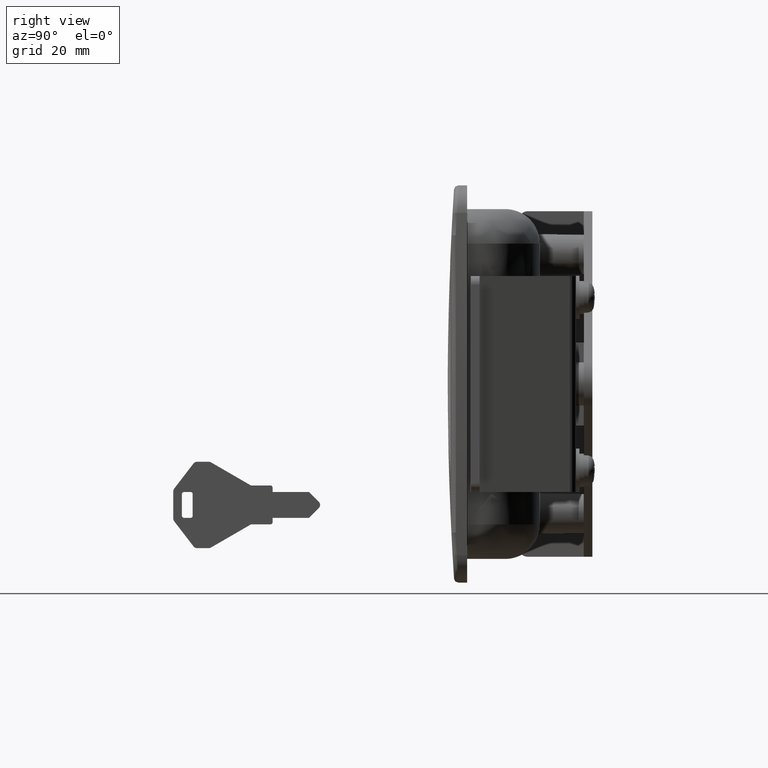
[diagram: clean part render]
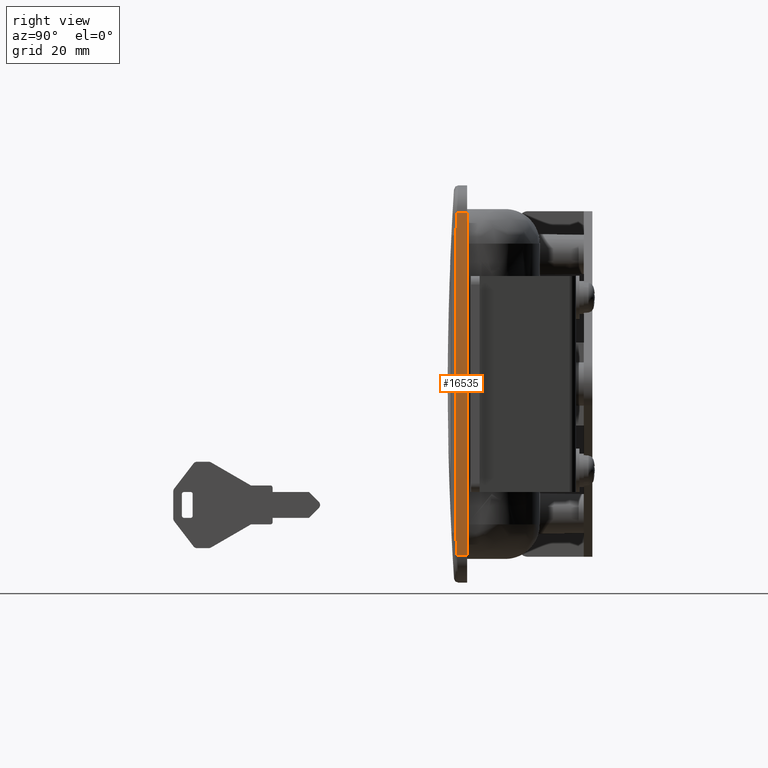
[diagram: same view with one face highlighted and labeled with its STEP entity id]
A machine part, right view. The second image highlights one B-rep face of the part: STEP entity #16535.
In plain terms, the highlighted face is a freeform B-spline surface patch.
Its self-contained STEP definition (entity closure, byte-faithful):
#10969=CARTESIAN_POINT('',(35.334934619039451,-31.656110694211549,34.404885821527003));
#10970=VERTEX_POINT('',#10969);
#10994=CARTESIAN_POINT('',(35.334789705496462,-31.656117807424099,-34.404745395338097));
#10995=VERTEX_POINT('',#10994);
#11006=CARTESIAN_POINT('',(35.334934619039451,-31.656110694211549,34.404885821527003));
#11007=CARTESIAN_POINT('',(35.723348313781273,-31.637045015991511,28.677342737851308));
#11008=CARTESIAN_POINT('',(36.305795738564953,-31.607848390089028,17.215682646568869));
#11009=CARTESIAN_POINT('',(36.500153078761663,-31.597943796458441,5.740894913507236));
#11010=CARTESIAN_POINT('',(36.500132185122112,-31.597944856866189,-5.740468320508859));
#11011=CARTESIAN_POINT('',(36.402929358096642,-31.602898380384591,-11.478031210324170));
#11012=CARTESIAN_POINT('',(36.014477020912572,-31.622451424247100,-22.946350813182949));
#11013=CARTESIAN_POINT('',(35.723227525054028,-31.637051025517060,-28.677203942832339));
#11014=CARTESIAN_POINT('',(35.334789705496412,-31.656117807424049,-34.404745395338097));
#11015=B_SPLINE_CURVE_WITH_KNOTS('',3,(#11006,#11007,#11008,#11009,#11010,#11011,#11012,#11013,#11014),.UNSPECIFIED.,.F.,.U.,(4,1,2,2,4),(0.0,0.250000000000000,0.500000000000000,0.750000000000000,1.0),.UNSPECIFIED.);
#11016=EDGE_CURVE('',#10970,#10995,#11015,.T.);
#11068=CARTESIAN_POINT('',(34.954384103481900,-31.380838659475959,-39.616946120850052));
#11069=VERTEX_POINT('',#11068);
#11082=CARTESIAN_POINT('',(35.334789705496462,-31.656117807424099,-34.404745395338097));
#11083=CARTESIAN_POINT('',(34.954384103481900,-31.380838659475959,-39.616946120850052));
#11084=QUASI_UNIFORM_CURVE('',1,(#11082,#11083),.UNSPECIFIED.,.F.,.U.);
#11085=EDGE_CURVE('',#10995,#11069,#11084,.T.);
#11137=CARTESIAN_POINT('',(34.954558583034263,-31.380835882663249,39.616990741978697));
#11138=VERTEX_POINT('',#11137);
#11139=CARTESIAN_POINT('',(34.954558583034263,-31.380835882663249,39.616990741978697));
#11140=CARTESIAN_POINT('',(35.334934619039451,-31.656110694211549,34.404885821527003));
#11141=QUASI_UNIFORM_CURVE('',1,(#11139,#11140),.UNSPECIFIED.,.F.,.U.);
#11142=EDGE_CURVE('',#11138,#10970,#11141,.T.);
#15598=CARTESIAN_POINT('',(34.954558583034263,-29.0,39.616990741978697));
#15599=VERTEX_POINT('',#15598);
#15600=CARTESIAN_POINT('',(34.954558583034263,-29.0,39.616990741978697));
#15601=CARTESIAN_POINT('',(34.954558583034263,-31.380835882663249,39.616990741978697));
#15602=QUASI_UNIFORM_CURVE('',1,(#15600,#15601),.UNSPECIFIED.,.F.,.U.);
#15603=EDGE_CURVE('',#15599,#11138,#15602,.T.);
#15635=CARTESIAN_POINT('',(34.954384103481900,-29.0,-39.616946120850052));
#15636=VERTEX_POINT('',#15635);
#15637=CARTESIAN_POINT('',(34.954384103481900,-29.0,-39.616946120850052));
#15638=CARTESIAN_POINT('',(34.954384103481900,-31.380838659475959,-39.616946120850052));
#15639=QUASI_UNIFORM_CURVE('',1,(#15637,#15638),.UNSPECIFIED.,.F.,.U.);
#15640=EDGE_CURVE('',#15636,#11069,#15639,.T.);
#15790=CARTESIAN_POINT('',(34.954384103481900,-29.0,-39.616946120850052));
#15791=CARTESIAN_POINT('',(38.050526736264970,-29.0,0.000015492799512));
#15792=CARTESIAN_POINT('',(34.954558583034263,-29.0,39.616990741978697));
#15800=(BOUNDED_CURVE()B_SPLINE_CURVE(2,(#15790,#15791,#15792),.UNSPECIFIED.,.F.,.U.)CURVE()GEOMETRIC_REPRESENTATION_ITEM()QUASI_UNIFORM_CURVE()RATIONAL_B_SPLINE_CURVE((1.0,0.996960226561735,1.0))REPRESENTATION_ITEM(''));
#15801=EDGE_CURVE('',#15636,#15599,#15800,.T.);
#16513=CARTESIAN_POINT('',(34.631162314686371,-28.933597054814395,43.557930309841417));
#16514=CARTESIAN_POINT('',(34.631162314686371,-31.724180826239344,43.557930309841417));
#16515=CARTESIAN_POINT('',(38.376366465806029,-28.933597054814392,-0.002915263274436));
#16516=CARTESIAN_POINT('',(38.376366465806029,-31.724180826239348,-0.002915263274436));
#16517=CARTESIAN_POINT('',(34.630470288605423,-28.933597054814399,-43.563701332950060));
#16518=CARTESIAN_POINT('',(34.630470288605423,-31.724180826239348,-43.563701332950060));
#16526=(BOUNDED_SURFACE()B_SPLINE_SURFACE(1,2,((#16513,#16515,#16517),(#16514,#16516,#16518)),.UNSPECIFIED.,.F.,.F.,.U.)B_SPLINE_SURFACE_WITH_KNOTS((2,2),(3,3),(0.0,2.790583771424952),(0.484464670443534,87.773613427853590),.UNSPECIFIED.)GEOMETRIC_REPRESENTATION_ITEM()RATIONAL_B_SPLINE_SURFACE(((0.999950430743403,0.995505211850673,0.998407118992518),(0.999950430743403,0.995505211850673,0.998407118992518)))REPRESENTATION_ITEM('')SURFACE());
#16527=ORIENTED_EDGE('',*,*,#15603,.T.);
#16528=ORIENTED_EDGE('',*,*,#11142,.T.);
#16529=ORIENTED_EDGE('',*,*,#11016,.T.);
#16530=ORIENTED_EDGE('',*,*,#11085,.T.);
#16531=ORIENTED_EDGE('',*,*,#15640,.F.);
#16532=ORIENTED_EDGE('',*,*,#15801,.T.);
#16533=EDGE_LOOP('',(#16527,#16528,#16529,#16530,#16531,#16532));
#16534=FACE_OUTER_BOUND('',#16533,.T.);
#16535=ADVANCED_FACE('',(#16534),#16526,.T.);